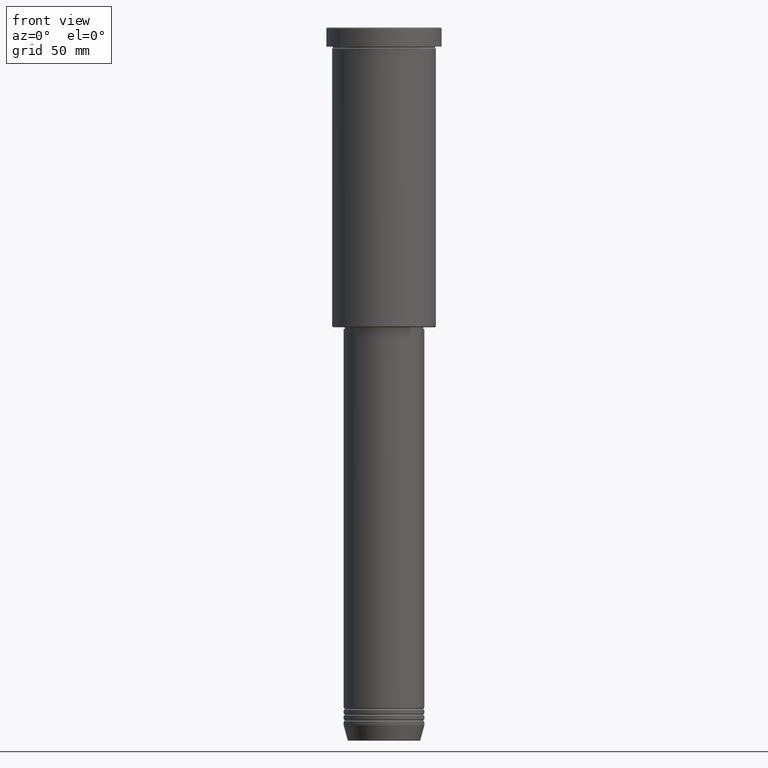
[diagram: clean part render]
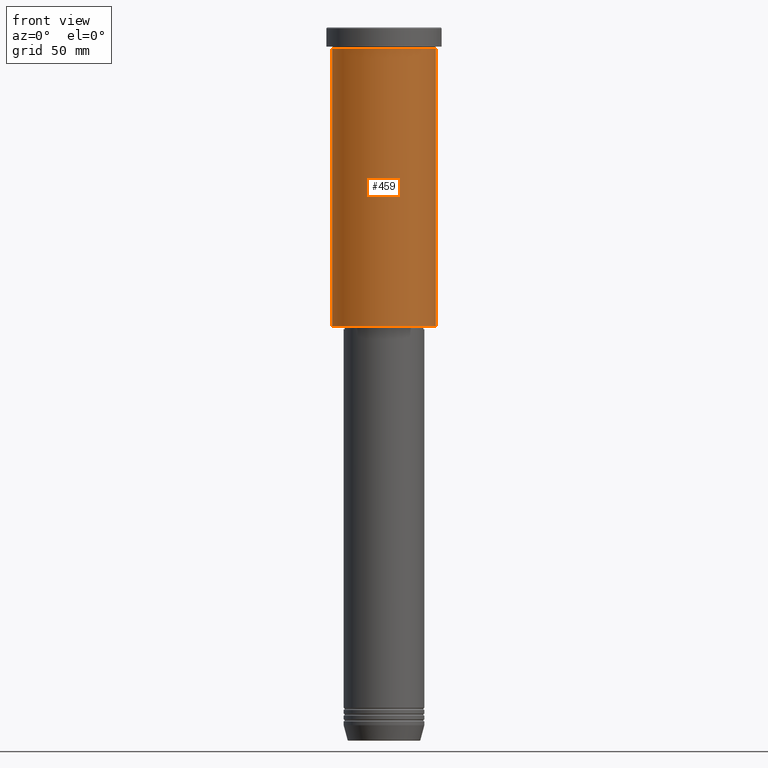
[diagram: same view with one face highlighted and labeled with its STEP entity id]
A machine part, front view. The second image highlights one B-rep face of the part: STEP entity #459.
In plain terms, the highlighted cylindrical surface (partial cylindrical patch) has radius 27 mm, axis along (-0, -0, 1).
Its self-contained STEP definition (entity closure, byte-faithful):
#14 = DIRECTION ( 'NONE',  ( 1.000000000000000000, 0.000000000000000000, 0.000000000000000000 ) ) ;
#23 = ORIENTED_EDGE ( 'NONE', *, *, #710, .T. ) ;
#54 = EDGE_CURVE ( 'NONE', #927, #712, #213, .T. ) ;
#94 = CARTESIAN_POINT ( 'NONE',  ( 0.000000000000000000, 0.000000000000000000, -10.99999999999999289 ) ) ;
#106 = VECTOR ( 'NONE', #585, 1000.000000000000000 ) ;
#114 = VERTEX_POINT ( 'NONE', #517 ) ;
#211 = CARTESIAN_POINT ( 'NONE',  ( 27.00000000000000355, 0.000000000000000000, 0.000000000000000000 ) ) ;
#213 = LINE ( 'NONE', #400, #975 ) ;
#288 = AXIS2_PLACEMENT_3D ( 'NONE', #560, #923, #397 ) ;
#293 = VERTEX_POINT ( 'NONE', #563 ) ;
#308 = DIRECTION ( 'NONE',  ( -0.000000000000000000, -0.000000000000000000, 1.000000000000000000 ) ) ;
#320 = DIRECTION ( 'NONE',  ( -1.000000000000000000, 0.000000000000000000, 0.000000000000000000 ) ) ;
#397 = DIRECTION ( 'NONE',  ( 1.000000000000000000, 0.000000000000000000, 0.000000000000000000 ) ) ;
#400 = CARTESIAN_POINT ( 'NONE',  ( -27.00000000000000355, 3.306546357697854128E-15, 0.000000000000000000 ) ) ;
#416 = DIRECTION ( 'NONE',  ( -0.000000000000000000, -0.000000000000000000, 1.000000000000000000 ) ) ;
#459 = ADVANCED_FACE ( 'NONE', ( #642 ), #466, .T. ) ;
#466 = CYLINDRICAL_SURFACE ( 'NONE', #288, 27.00000000000000355 ) ;
#500 = EDGE_CURVE ( 'NONE', #712, #114, #960, .T. ) ;
#511 = CARTESIAN_POINT ( 'NONE',  ( 0.000000000000000000, 0.000000000000000000, -155.4999999999999432 ) ) ;
#517 = CARTESIAN_POINT ( 'NONE',  ( 27.00000000000000355, 0.000000000000000000, -10.99999999999999289 ) ) ;
#543 = CIRCLE ( 'NONE', #921, 27.00000000000000355 ) ;
#560 = CARTESIAN_POINT ( 'NONE',  ( 0.000000000000000000, 0.000000000000000000, 0.000000000000000000 ) ) ;
#563 = CARTESIAN_POINT ( 'NONE',  ( 27.00000000000000355, 0.000000000000000000, -155.4999999999999432 ) ) ;
#585 = DIRECTION ( 'NONE',  ( -0.000000000000000000, -0.000000000000000000, 1.000000000000000000 ) ) ;
#642 = FACE_OUTER_BOUND ( 'NONE', #715, .T. ) ;
#650 = ORIENTED_EDGE ( 'NONE', *, *, #669, .T. ) ;
#658 = DIRECTION ( 'NONE',  ( -0.000000000000000000, -0.000000000000000000, 1.000000000000000000 ) ) ;
#663 = ORIENTED_EDGE ( 'NONE', *, *, #500, .F. ) ;
#669 = EDGE_CURVE ( 'NONE', #293, #114, #1043, .T. ) ;
#686 = CARTESIAN_POINT ( 'NONE',  ( -27.00000000000000355, 3.306546357697854128E-15, -10.99999999999999289 ) ) ;
#710 = EDGE_CURVE ( 'NONE', #927, #293, #543, .T. ) ;
#712 = VERTEX_POINT ( 'NONE', #686 ) ;
#715 = EDGE_LOOP ( 'NONE', ( #1003, #23, #650, #663 ) ) ;
#921 = AXIS2_PLACEMENT_3D ( 'NONE', #511, #416, #320 ) ;
#923 = DIRECTION ( 'NONE',  ( -0.000000000000000000, -0.000000000000000000, 1.000000000000000000 ) ) ;
#927 = VERTEX_POINT ( 'NONE', #1121 ) ;
#960 = CIRCLE ( 'NONE', #1163, 27.00000000000000355 ) ;
#975 = VECTOR ( 'NONE', #308, 1000.000000000000000 ) ;
#1003 = ORIENTED_EDGE ( 'NONE', *, *, #54, .F. ) ;
#1043 = LINE ( 'NONE', #211, #106 ) ;
#1121 = CARTESIAN_POINT ( 'NONE',  ( -27.00000000000000355, 3.306546357697854128E-15, -155.4999999999999432 ) ) ;
#1163 = AXIS2_PLACEMENT_3D ( 'NONE', #94, #658, #14 ) ;